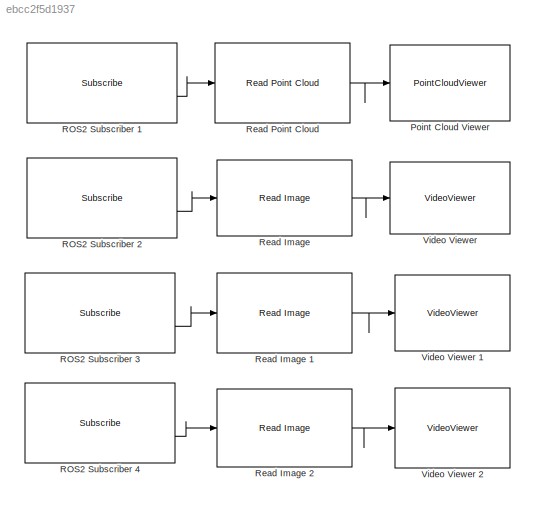
MODEL slx_ebcc2f5d1937
KIND model
CONFIG AbsTol = auto
CONFIG EnableMultiTasking = off
CONFIG FixedStep = auto
CONFIG MaxStep = auto
CONFIG MinStep = auto
CONFIG RelTol = 1e-3
CONFIG SampleTimeConstraint = Unconstrained
CONFIG SolverName = FixedStepAuto
CONFIG StartTime = 0.0
CONFIG StopTime = inf
WORKSPACE source: mxarray member
WORKSPACE SL_ROS_VariableLengthArrays_MaxSizes: object (value not decoded)
BLOCK [PointCloudViewer] Point Cloud Viewer
  FigPos = [1194 884 491 333]
  ScopeSpecificationString = vipscopes.PointCloudViewerScopeCfg('CurrentConfiguration', extmgr.ConfigurationSet(extmgr.Configuration('Core','General UI',true),extmgr.Configuration('Core','Source UI',true),extmgr.Configuration('Sources','WiredSimulink',true),extmgr.Configuration('Visuals','Point Cloud',true)),'Version','2023b','Position',[1194 195 491 333])
BLOCK [Reference] ROS2 Subscriber 1  REF=ros2lib/Subscribe  (lib defined in slx_3c1549211f48)
  SourceBlock = ros2lib/Subscribe
  SourceType = ROS2 Subscribe
BLOCK [Reference] ROS2 Subscriber 2  REF=ros2lib/Subscribe  (lib defined in slx_3c1549211f48)
  SourceBlock = ros2lib/Subscribe
  SourceType = ROS2 Subscribe
BLOCK [Reference] ROS2 Subscriber 3  REF=ros2lib/Subscribe  (lib defined in slx_3c1549211f48)
  SourceBlock = ros2lib/Subscribe
  SourceType = ROS2 Subscribe
BLOCK [Reference] ROS2 Subscriber 4  REF=ros2lib/Subscribe  (lib defined in slx_3c1549211f48)
  SourceBlock = ros2lib/Subscribe
  SourceType = ROS2 Subscribe
BLOCK [Reference] Read Image   REF=ros2lib/Read Image  (lib defined in slx_3c1549211f48)
  SourceBlock = ros2lib/Read Image
  SourceType = ros.slros2.internal.block.ReadImage
BLOCK [Reference] Read Image 1  REF=ros2lib/Read Image  (lib defined in slx_3c1549211f48)
  SourceBlock = ros2lib/Read Image
  SourceType = ros.slros2.internal.block.ReadImage
BLOCK [Reference] Read Image 2  REF=ros2lib/Read Image  (lib defined in slx_3c1549211f48)
  SourceBlock = ros2lib/Read Image
  SourceType = ros.slros2.internal.block.ReadImage
BLOCK [Reference] Read Point Cloud  REF=ros2lib/Read Point Cloud  (lib defined in slx_3c1549211f48)
  SourceBlock = ros2lib/Read Point Cloud
  SourceType = ros.slros2.internal.block.ReadPointCloud
BLOCK [VideoViewer] Video Viewer 
  FigPos = [295 647 418 304]
  ScopeSpecificationString = vipscopes.VideoViewerScopeCfg('CurrentConfiguration', extmgr.ConfigurationSet(extmgr.Configuration('Core','General UI',true),extmgr.Configuration('Core','Source UI',true),extmgr.Configuration('Sources','WiredSimulink',true),extmgr.Configuration('Visuals','Video',true),extmgr.Configuration('Tools','Image Navigation Tools',true,'FitToView',true),extmgr.Configuration('Tools','Image Tool',true),extmgr...<+92ch>  <repeated x3 — deduplicated; at blocks: Video Viewer, Video Viewer 1, Video Viewer 2>
  colormapValue = gray(256)
BLOCK [VideoViewer] Video Viewer 1
  FigPos = [492 784 418 304]
  colormapValue = gray(256)
BLOCK [VideoViewer] Video Viewer 2
  FigPos = [751 691 418 304]
  colormapValue = gray(256)
LINE ROS2 Subscriber 1:2 -> Read Point Cloud:1
LINE ROS2 Subscriber 2:2 -> Read Image :1
LINE ROS2 Subscriber 3:2 -> Read Image 1:1
LINE ROS2 Subscriber 4:2 -> Read Image 2:1
LINE Read Image 1:1 -> Video Viewer 1:1
LINE Read Image 2:1 -> Video Viewer 2:1
LINE Read Image :1 -> Video Viewer :1
LINE Read Point Cloud:1 -> Point Cloud Viewer:1
